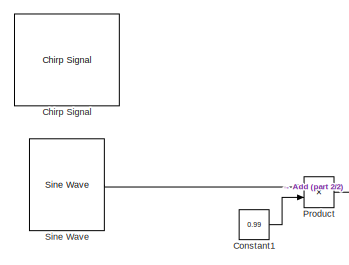
[diagram: root canvas - part 1/2, top left region]
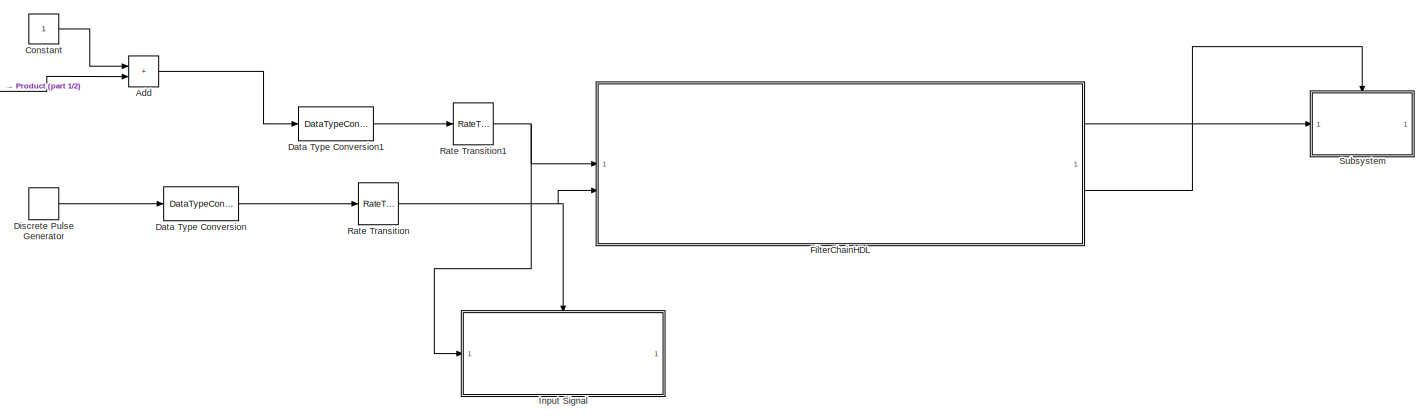
[diagram: root canvas - part 2/2, most of the canvas]
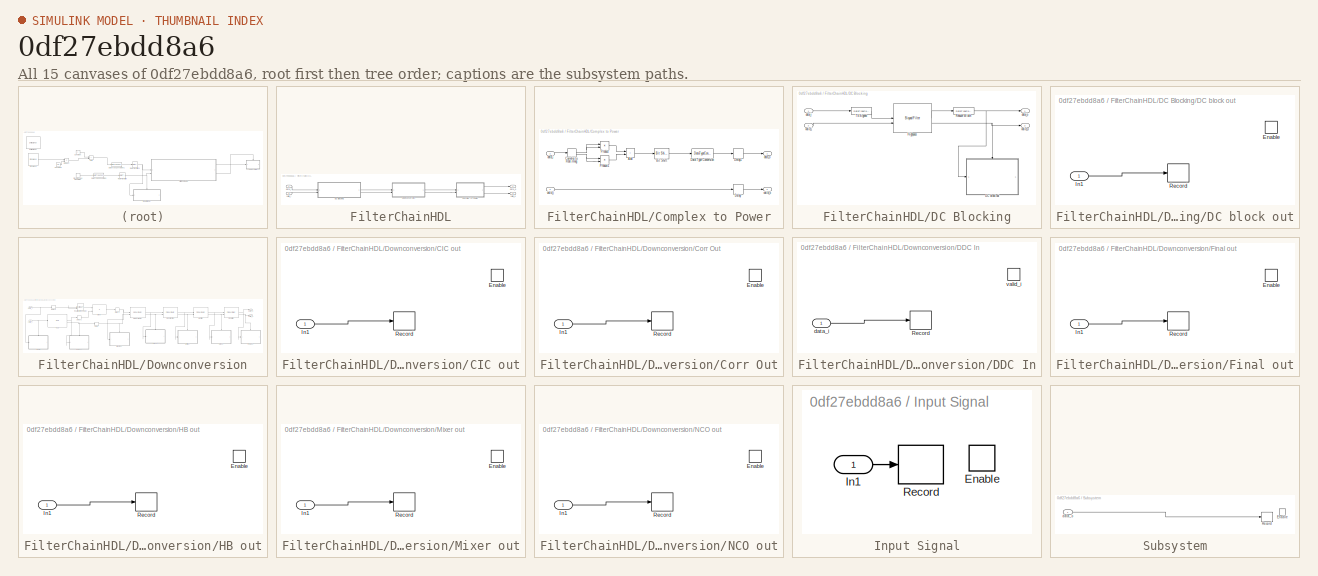
[diagram: thumbnail index - all 15 canvases of the model, root first then tree order]
MODEL slx_0df27ebdd8a6
KIND model
CONFIG AbsTol = auto
CONFIG EnableMultiTasking = off
CONFIG FixedStep = 1/(87.49091e6)
CONFIG MaxStep = auto
CONFIG MinStep = auto
CONFIG RelTol = 1e-3
CONFIG SampleTimeConstraint = Unconstrained
CONFIG SolverName = FixedStepAuto
CONFIG StartTime = 0.0
CONFIG StopTime = 0.02
BLOCK [Sum] Add
  IconShape = rectangular
BLOCK [Reference] Chirp Signal  REF=simulink/Sources/Chirp Signal
  Commented = on
  SourceBlock = simulink/Sources/Chirp Signal
  SourceType = chirp
BLOCK [Constant] Constant
  OutDataTypeStr = double
BLOCK [Constant] Constant1
  OutDataTypeStr = double
  Value = 0.99
BLOCK [DataTypeConversion] Data Type Conversion
  OutDataTypeStr = boolean
  RndMeth = Floor
  SaturateOnIntegerOverflow = off
BLOCK [DataTypeConversion] Data Type Conversion1
  RndMeth = Floor
  SaturateOnIntegerOverflow = off
BLOCK [DiscretePulseGenerator] Discrete Pulse Generator
  Period = 18
  SampleTime = 1/(87.49091e6)
BLOCK [SubSystem] FilterChainHDL
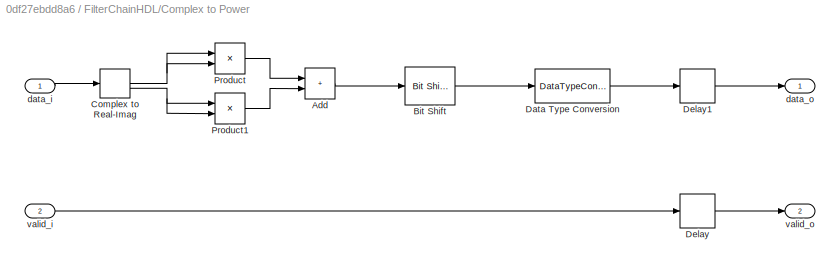
BLOCK [SubSystem] FilterChainHDL/Complex to Power
BLOCK [Sum] FilterChainHDL/Complex to Power/Add
  AccumDataTypeStr = fixdt(1,38,34)
  IconShape = rectangular
  OutDataTypeStr = Inherit: Same as accumulator
BLOCK [Reference] FilterChainHDL/Complex to Power/Bit Shift  REF=hdlsllib/Logic and Bit
Operations/Bit Shift
  SourceBlock = hdlsllib/Logic and Bit\nOperations/Bit Shift
  SourceType = Bit Shift
BLOCK [ComplexToRealImag] FilterChainHDL/Complex to Power/Complex to Real-Imag
BLOCK [DataTypeConversion] FilterChainHDL/Complex to Power/Data Type Conversion
  OutDataTypeStr = fixdt(1,32,28)
  RndMeth = Floor
  SaturateOnIntegerOverflow = off
BLOCK [Delay] FilterChainHDL/Complex to Power/Delay
  DelayLength = 1
  InitialCondition = 0
  InputPortMap = u0
BLOCK [Delay] FilterChainHDL/Complex to Power/Delay1
  DelayLength = 1
  InitialCondition = 0
  InputPortMap = u0
BLOCK [Product] FilterChainHDL/Complex to Power/Product
BLOCK [Product] FilterChainHDL/Complex to Power/Product1
BLOCK [Inport] FilterChainHDL/Complex to Power/data_i
BLOCK [Outport] FilterChainHDL/Complex to Power/data_o
BLOCK [Inport] FilterChainHDL/Complex to Power/valid_i
  Port = 2
BLOCK [Outport] FilterChainHDL/Complex to Power/valid_o
  Port = 2
BLOCK [SubSystem] FilterChainHDL/DC Blocking
BLOCK [SubSystem] FilterChainHDL/DC Blocking/DC block out
  TreatAsAtomicUnit = on
BLOCK [EnablePort] FilterChainHDL/DC Blocking/DC block out/Enable
BLOCK [Inport] FilterChainHDL/DC Blocking/DC block out/In1
BLOCK [Record] FilterChainHDL/DC Blocking/DC block out/Record
  FileSettingsInternal = {"entries":[{"content":{"excelSettings":{"content":{},"type":"Streamout.ExcelSettings"},"parquetSettings":{"content":{},"type":"Streamout.ParquetSettings"}},"type":"Streamout.FileSettingStorage","uuid":""}],"packageUris":["http:\/\/schema.mathworks.com\/mf0\/streamout_blocks\/R2020a"],"version":"1.0"}  <repeated x10 — deduplicated; at blocks: Record>
  FrameSettings = 0
  NumPorts = 1.0
  SignalsInternal = {"entries":[{"content":{"signals":[{"content":{"blockPath":[],"dimensions":[1,1],"domain":"","lineColor":"#ff13a6","lineWidth":2,"plots":[ 1 ],"port":1,"sid":[""],"signalID":1,"signalName":"In1"},"type":"RecordBlkView.Signal","uuid":""}]},"type":"RecordBlkView.InputSignals","uuid":""}],"packageUris":["http:\/\/schema.mathworks.com\/mf0\/streamout_blocks\/R2020a"],"version":"1.0"}
  VisualizationBindings = {"sparklinesplugin":{"info":[{"bindingParametersList":[],"subplotID":1}]}}
BLOCK [Reference] FilterChainHDL/DC Blocking/Highpass  REF=dsphdlfiltering2/Biquad Filter
  SourceBlock = dsphdlfiltering2/Biquad Filter
  SourceType = Biquad Filter
BLOCK [DataTypeConversion] FilterChainHDL/DC Blocking/Reduce Width
  OutDataTypeStr = fixdt(1,16,14)
  RndMeth = Floor
  SaturateOnIntegerOverflow = off
BLOCK [DataTypeConversion] FilterChainHDL/DC Blocking/To Signed
  OutDataTypeStr = fixdt(1,13,11)
  RndMeth = Floor
  SaturateOnIntegerOverflow = off
BLOCK [Inport] FilterChainHDL/DC Blocking/data_i
  OutDataTypeStr = fixdt(0,12,11)
BLOCK [Outport] FilterChainHDL/DC Blocking/data_o
  OutDataTypeStr = fixdt(1,16,14)
BLOCK [Inport] FilterChainHDL/DC Blocking/valid_i
  Port = 2
BLOCK [Outport] FilterChainHDL/DC Blocking/valid_o
  Port = 2
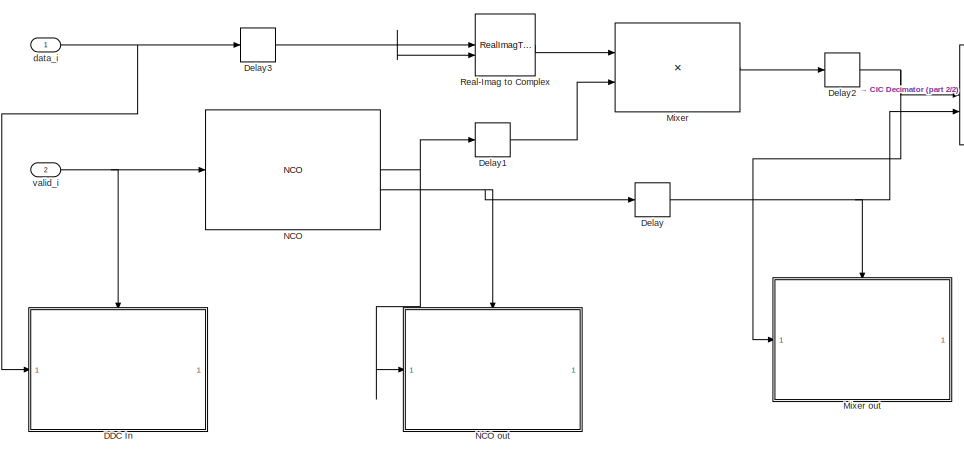
[diagram: FilterChainHDL/Downconversion - part 1/2, left side, full height]
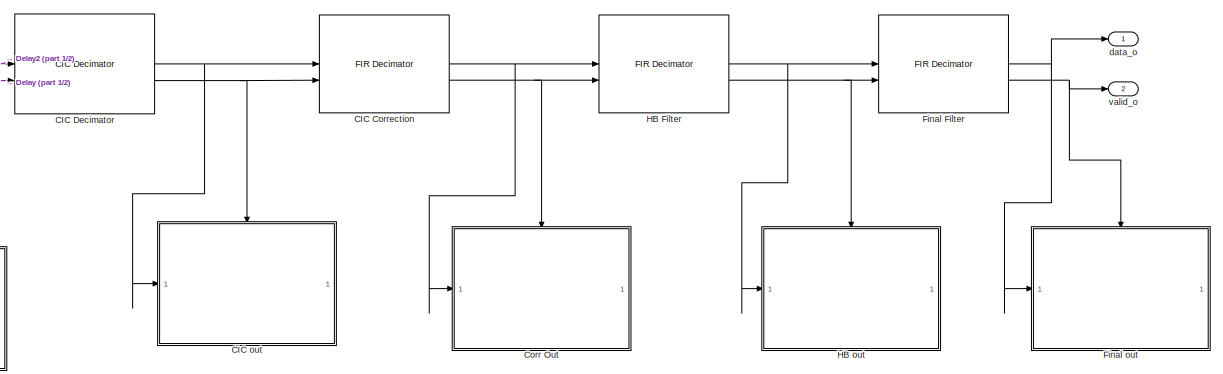
[diagram: FilterChainHDL/Downconversion - part 2/2, right side, full height]
BLOCK [SubSystem] FilterChainHDL/Downconversion
BLOCK [Reference] FilterChainHDL/Downconversion/CIC Correction  REF=dsphdlfiltering2/FIR Decimator
  SourceBlock = dsphdlfiltering2/FIR Decimator
  SourceType = FIR Decimator
BLOCK [Reference] FilterChainHDL/Downconversion/CIC Decimator  REF=dsphdlfiltering2/CIC Decimator
  SourceBlock = dsphdlfiltering2/CIC Decimator
  SourceType = CIC Decimator
BLOCK [SubSystem] FilterChainHDL/Downconversion/CIC out
  TreatAsAtomicUnit = on
BLOCK [EnablePort] FilterChainHDL/Downconversion/CIC out/Enable
BLOCK [Inport] FilterChainHDL/Downconversion/CIC out/In1
BLOCK [Record] FilterChainHDL/Downconversion/CIC out/Record
  FrameSettings = 0
  NumPorts = 1.0
  SignalsInternal = {"entries":[{"content":{"signals":[{"content":{"blockPath":[],"dimensions":[1,1],"domain":"","hasChildren":true,"isComplex":true,"lineColor":"#4dbeee","lineWidth":2,"port":1,"sid":[""],"signalID":1,"signalName":"In1"},"type":"RecordBlkView.Signal","uuid":""},{"content":{"blockPath":[],"dimensions":[1,1],"domain":"","isComplex":true,"lineColor":"#64d413","lineWidth":2,"parentID":1,"plots":[ 1 ],"po...<+470ch>
  VisualizationBindings = {"sparklinesplugin":{"info":[{"bindingParametersList":[],"subplotID":1}]}}
BLOCK [SubSystem] FilterChainHDL/Downconversion/Corr Out
  TreatAsAtomicUnit = on
BLOCK [EnablePort] FilterChainHDL/Downconversion/Corr Out/Enable
BLOCK [Inport] FilterChainHDL/Downconversion/Corr Out/In1
BLOCK [Record] FilterChainHDL/Downconversion/Corr Out/Record
  FrameSettings = 0
  NumPorts = 1.0
  SignalsInternal = {"entries":[{"content":{"signals":[{"content":{"blockPath":[],"dimensions":[1,1],"domain":"","hasChildren":true,"isComplex":true,"lineColor":"#ff6929","lineWidth":2,"port":1,"sid":[""],"signalID":1,"signalName":"In1"},"type":"RecordBlkView.Signal","uuid":""},{"content":{"blockPath":[],"dimensions":[1,1],"domain":"","isComplex":true,"lineColor":"#22b573","lineWidth":2,"parentID":1,"plots":[ 1 ],"po...<+470ch>
  VisualizationBindings = {"sparklinesplugin":{"info":[{"bindingParametersList":[],"subplotID":1}]}}
BLOCK [SubSystem] FilterChainHDL/Downconversion/DDC In
  TreatAsAtomicUnit = on
BLOCK [Record] FilterChainHDL/Downconversion/DDC In/Record
  FrameSettings = 0
  NumPorts = 1.0
  SignalsInternal = {"entries":[{"content":{"signals":[{"content":{"blockPath":[],"dimensions":[1,1],"domain":"","lineColor":"#77ac30","lineWidth":2,"plots":[ 1 ],"port":1,"sid":[""],"signalID":1,"signalName":"data_i"},"type":"RecordBlkView.Signal","uuid":""}]},"type":"RecordBlkView.InputSignals","uuid":""}],"packageUris":["http:\/\/schema.mathworks.com\/mf0\/streamout_blocks\/R2020a"],"version":"1.0"}
  VisualizationBindings = {"sparklinesplugin":{"info":[{"bindingParametersList":[],"subplotID":1}]}}
BLOCK [Inport] FilterChainHDL/Downconversion/DDC In/data_i
BLOCK [EnablePort] FilterChainHDL/Downconversion/DDC In/valid_i
BLOCK [Delay] FilterChainHDL/Downconversion/Delay
  InitialCondition = 0
  InputPortMap = u0
BLOCK [Delay] FilterChainHDL/Downconversion/Delay1
  DelayLength = 1
  InitialCondition = 0
  InputPortMap = u0
BLOCK [Delay] FilterChainHDL/Downconversion/Delay2
  DelayLength = 1
  InitialCondition = 0
  InputPortMap = u0
BLOCK [Delay] FilterChainHDL/Downconversion/Delay3
  DelayLength = 7
  InitialCondition = 0
  InputPortMap = u0
BLOCK [Reference] FilterChainHDL/Downconversion/Final Filter  REF=dsphdlfiltering2/FIR Decimator
  SourceBlock = dsphdlfiltering2/FIR Decimator
  SourceType = FIR Decimator
BLOCK [SubSystem] FilterChainHDL/Downconversion/Final out
  TreatAsAtomicUnit = on
BLOCK [EnablePort] FilterChainHDL/Downconversion/Final out/Enable
BLOCK [Inport] FilterChainHDL/Downconversion/Final out/In1
BLOCK [Record] FilterChainHDL/Downconversion/Final out/Record
  FrameSettings = 0
  NumPorts = 1.0
  SignalsInternal = {"entries":[{"content":{"signals":[{"content":{"blockPath":[],"dimensions":[1,1],"domain":"","hasChildren":true,"isComplex":true,"lineColor":"#fe330a","lineWidth":2,"port":1,"sid":[""],"signalID":1,"signalName":"In1"},"type":"RecordBlkView.Signal","uuid":""},{"content":{"blockPath":[],"dimensions":[1,1],"domain":"","isComplex":true,"lineColor":"#7e2f8e","lineWidth":2,"parentID":1,"plots":[ 1 ],"po...<+470ch>
  VisualizationBindings = {"sparklinesplugin":{"info":[{"bindingParametersList":[],"subplotID":1}]}}
BLOCK [Reference] FilterChainHDL/Downconversion/HB Filter  REF=dsphdlfiltering2/FIR Decimator
  SourceBlock = dsphdlfiltering2/FIR Decimator
  SourceType = FIR Decimator
BLOCK [SubSystem] FilterChainHDL/Downconversion/HB out
  TreatAsAtomicUnit = on
BLOCK [EnablePort] FilterChainHDL/Downconversion/HB out/Enable
BLOCK [Inport] FilterChainHDL/Downconversion/HB out/In1
BLOCK [Record] FilterChainHDL/Downconversion/HB out/Record
  FrameSettings = 0
  NumPorts = 1.0
  SignalsInternal = {"entries":[{"content":{"signals":[{"content":{"blockPath":[],"dimensions":[1,1],"domain":"","hasChildren":true,"isComplex":true,"lineColor":"#d95319","lineWidth":2,"port":1,"sid":[""],"signalID":1,"signalName":"In1"},"type":"RecordBlkView.Signal","uuid":""},{"content":{"blockPath":[],"dimensions":[1,1],"domain":"","isComplex":true,"lineColor":"#a2142f","lineWidth":2,"parentID":1,"plots":[ 1 ],"po...<+470ch>
  VisualizationBindings = {"sparklinesplugin":{"info":[{"bindingParametersList":[],"subplotID":1}]}}
BLOCK [Product] FilterChainHDL/Downconversion/Mixer
  InputSameDT = on
  OutDataTypeStr = fixdt(1,16,14)
BLOCK [SubSystem] FilterChainHDL/Downconversion/Mixer out
  TreatAsAtomicUnit = on
BLOCK [EnablePort] FilterChainHDL/Downconversion/Mixer out/Enable
BLOCK [Inport] FilterChainHDL/Downconversion/Mixer out/In1
BLOCK [Record] FilterChainHDL/Downconversion/Mixer out/Record
  FrameSettings = 0
  NumPorts = 1.0
  SignalsInternal = {"entries":[{"content":{"signals":[{"content":{"blockPath":[],"dimensions":[1,1],"domain":"","hasChildren":true,"isComplex":true,"lineColor":"#77ac30","lineWidth":2,"port":1,"sid":[""],"signalID":1,"signalName":"In1"},"type":"RecordBlkView.Signal","uuid":""},{"content":{"blockPath":[],"dimensions":[1,1],"domain":"","isComplex":true,"lineColor":"#b746ff","lineWidth":2,"parentID":1,"plots":[ 1 ],"po...<+470ch>
  VisualizationBindings = {"sparklinesplugin":{"info":[{"bindingParametersList":[],"subplotID":1}]}}
BLOCK [Reference] FilterChainHDL/Downconversion/NCO  REF=dsphdlsigops2/NCO
  LibrarySourceBlock = dsphdlsrcs2/NCO
  SourceBlock = dsphdlsigops2/NCO
  SourceType = NCO
BLOCK [SubSystem] FilterChainHDL/Downconversion/NCO out
  TreatAsAtomicUnit = on
BLOCK [EnablePort] FilterChainHDL/Downconversion/NCO out/Enable
BLOCK [Inport] FilterChainHDL/Downconversion/NCO out/In1
BLOCK [Record] FilterChainHDL/Downconversion/NCO out/Record
  FrameSettings = 0
  NumPorts = 1.0
  SignalsInternal = {"entries":[{"content":{"signals":[{"content":{"blockPath":[],"dimensions":[1,1],"domain":"","hasChildren":true,"isComplex":true,"lineColor":"#139fff","lineWidth":2,"port":1,"sid":[""],"signalID":1,"signalName":"In1"},"type":"RecordBlkView.Signal","uuid":""},{"content":{"blockPath":[],"dimensions":[1,1],"domain":"","isComplex":true,"lineColor":"#ff13a6","lineWidth":2,"parentID":1,"plots":[ 1 ],"po...<+470ch>
  VisualizationBindings = {"sparklinesplugin":{"info":[{"bindingParametersList":[],"subplotID":1}]}}
BLOCK [RealImagToComplex] FilterChainHDL/Downconversion/Real-Imag to Complex
BLOCK [Inport] FilterChainHDL/Downconversion/data_i
  OutDataTypeStr = fixdt(1,16,14)
BLOCK [Outport] FilterChainHDL/Downconversion/data_o
BLOCK [Inport] FilterChainHDL/Downconversion/valid_i
  OutDataTypeStr = boolean
  Port = 2
BLOCK [Outport] FilterChainHDL/Downconversion/valid_o
  Port = 2
BLOCK [Inport] FilterChainHDL/data_i
  OutDataTypeStr = fixdt(0,12,11)
BLOCK [Outport] FilterChainHDL/data_o
BLOCK [Inport] FilterChainHDL/valid_i
  OutDataTypeStr = boolean
  Port = 2
BLOCK [Outport] FilterChainHDL/valid_o
  OutDataTypeStr = boolean
  Port = 2
BLOCK [SubSystem] Input Signal
BLOCK [EnablePort] Input Signal/Enable
BLOCK [Inport] Input Signal/In1
BLOCK [Record] Input Signal/Record
  FrameSettings = 0
  NumPorts = 1.0
  SignalsInternal = {"entries":[{"content":{"signals":[{"content":{"blockPath":[],"dimensions":[1,1],"domain":"","lineColor":"#7e2f8e","lineWidth":2,"plots":[ 1 ],"port":1,"sid":[""],"signalID":1,"signalName":"In1"},"type":"RecordBlkView.Signal","uuid":""}]},"type":"RecordBlkView.InputSignals","uuid":""}],"packageUris":["http:\/\/schema.mathworks.com\/mf0\/streamout_blocks\/R2020a"],"version":"1.0"}
  VisualizationBindings = {"sparklinesplugin":{"info":[{"bindingParametersList":[],"subplotID":1}]}}
BLOCK [Product] Product
BLOCK [RateTransition] Rate Transition
BLOCK [RateTransition] Rate Transition1
BLOCK [Reference] Sine Wave  REF=dspsrcs4/Sine Wave
  LibrarySourceBlock = dsphdlsupportsrcs/Sine Wave
  SourceBlock = dspsrcs4/Sine Wave
  SourceType = Sine Wave
BLOCK [SubSystem] Subsystem
BLOCK [EnablePort] Subsystem/Enable
BLOCK [Record] Subsystem/Record
  FrameSettings = 0
  NumPorts = 1.0
  SignalsInternal = {"entries":[{"content":{"signals":[{"content":{"blockPath":[],"dimensions":[1],"domain":"","lineColor":"#4dbeee","lineWidth":2,"plots":[ 1 ],"port":1,"sid":[""],"signalID":1,"signalName":"data_o"},"type":"RecordBlkView.Signal","uuid":""}]},"type":"RecordBlkView.InputSignals","uuid":""}],"packageUris":["http:\/\/schema.mathworks.com\/mf0\/streamout_blocks\/R2020a"],"version":"1.0"}
  VisualizationBindings = {"sparklinesplugin":{"info":[{"bindingParametersList":[],"subplotID":1}]}}
BLOCK [Inport] Subsystem/data_o
LINE Add:1 -> Data Type Conversion1:1
LINE Constant1:1 -> Product:2
LINE Constant:1 -> Add:1
LINE Data Type Conversion1:1 -> Rate Transition1:1
LINE Data Type Conversion:1 -> Rate Transition:1
LINE Discrete Pulse Generator:1 -> Data Type Conversion:1
LINE FilterChainHDL/Complex to Power/Add:1 -> FilterChainHDL/Complex to Power/Bit Shift:1
LINE FilterChainHDL/Complex to Power/Bit Shift:1 -> FilterChainHDL/Complex to Power/Data Type Conversion:1
NET FilterChainHDL/Complex to Power/Complex to Real-Imag:1 -> FilterChainHDL/Complex to Power/Product:1, FilterChainHDL/Complex to Power/Product:2
NET FilterChainHDL/Complex to Power/Complex to Real-Imag:2 -> FilterChainHDL/Complex to Power/Product1:1, FilterChainHDL/Complex to Power/Product1:2
LINE FilterChainHDL/Complex to Power/Data Type Conversion:1 -> FilterChainHDL/Complex to Power/Delay1:1
LINE FilterChainHDL/Complex to Power/Delay1:1 -> FilterChainHDL/Complex to Power/data_o:1
LINE FilterChainHDL/Complex to Power/Delay:1 -> FilterChainHDL/Complex to Power/valid_o:1
LINE FilterChainHDL/Complex to Power/Product1:1 -> FilterChainHDL/Complex to Power/Add:2
LINE FilterChainHDL/Complex to Power/Product:1 -> FilterChainHDL/Complex to Power/Add:1
LINE FilterChainHDL/Complex to Power/data_i:1 -> FilterChainHDL/Complex to Power/Complex to Real-Imag:1
LINE FilterChainHDL/Complex to Power/valid_i:1 -> FilterChainHDL/Complex to Power/Delay:1
LINE FilterChainHDL/Complex to Power:1 -> FilterChainHDL/data_o:1
LINE FilterChainHDL/Complex to Power:2 -> FilterChainHDL/valid_o:1
LINE FilterChainHDL/DC Blocking/DC block out/In1:1 -> FilterChainHDL/DC Blocking/DC block out/Record:1
LINE FilterChainHDL/DC Blocking/Highpass:1 -> FilterChainHDL/DC Blocking/Reduce Width:1
NET FilterChainHDL/DC Blocking/Highpass:2 -> FilterChainHDL/DC Blocking/DC block out:enable, FilterChainHDL/DC Blocking/valid_o:1
NET FilterChainHDL/DC Blocking/Reduce Width:1 -> FilterChainHDL/DC Blocking/DC block out:1, FilterChainHDL/DC Blocking/data_o:1
LINE FilterChainHDL/DC Blocking/To Signed:1 -> FilterChainHDL/DC Blocking/Highpass:1
LINE FilterChainHDL/DC Blocking/data_i:1 -> FilterChainHDL/DC Blocking/To Signed:1
LINE FilterChainHDL/DC Blocking/valid_i:1 -> FilterChainHDL/DC Blocking/Highpass:2
LINE FilterChainHDL/DC Blocking:1 -> FilterChainHDL/Downconversion:1
LINE FilterChainHDL/DC Blocking:2 -> FilterChainHDL/Downconversion:2
NET FilterChainHDL/Downconversion/CIC Correction:1 -> FilterChainHDL/Downconversion/Corr Out:1, FilterChainHDL/Downconversion/HB Filter:1
NET FilterChainHDL/Downconversion/CIC Correction:2 -> FilterChainHDL/Downconversion/Corr Out:enable, FilterChainHDL/Downconversion/HB Filter:2
NET FilterChainHDL/Downconversion/CIC Decimator:1 -> FilterChainHDL/Downconversion/CIC Correction:1, FilterChainHDL/Downconversion/CIC out:1
NET FilterChainHDL/Downconversion/CIC Decimator:2 -> FilterChainHDL/Downconversion/CIC Correction:2, FilterChainHDL/Downconversion/CIC out:enable
LINE FilterChainHDL/Downconversion/CIC out/In1:1 -> FilterChainHDL/Downconversion/CIC out/Record:1
LINE FilterChainHDL/Downconversion/Corr Out/In1:1 -> FilterChainHDL/Downconversion/Corr Out/Record:1
LINE FilterChainHDL/Downconversion/DDC In/data_i:1 -> FilterChainHDL/Downconversion/DDC In/Record:1
LINE FilterChainHDL/Downconversion/Delay1:1 -> FilterChainHDL/Downconversion/Mixer:2
NET FilterChainHDL/Downconversion/Delay2:1 -> FilterChainHDL/Downconversion/CIC Decimator:1, FilterChainHDL/Downconversion/Mixer out:1
NET FilterChainHDL/Downconversion/Delay3:1 -> FilterChainHDL/Downconversion/Real-Imag to Complex:1, FilterChainHDL/Downconversion/Real-Imag to Complex:2
NET FilterChainHDL/Downconversion/Delay:1 -> FilterChainHDL/Downconversion/CIC Decimator:2, FilterChainHDL/Downconversion/Mixer out:enable
NET FilterChainHDL/Downconversion/Final Filter:1 -> FilterChainHDL/Downconversion/Final out:1, FilterChainHDL/Downconversion/data_o:1
NET FilterChainHDL/Downconversion/Final Filter:2 -> FilterChainHDL/Downconversion/Final out:enable, FilterChainHDL/Downconversion/valid_o:1
LINE FilterChainHDL/Downconversion/Final out/In1:1 -> FilterChainHDL/Downconversion/Final out/Record:1
NET FilterChainHDL/Downconversion/HB Filter:1 -> FilterChainHDL/Downconversion/Final Filter:1, FilterChainHDL/Downconversion/HB out:1
NET FilterChainHDL/Downconversion/HB Filter:2 -> FilterChainHDL/Downconversion/Final Filter:2, FilterChainHDL/Downconversion/HB out:enable
LINE FilterChainHDL/Downconversion/HB out/In1:1 -> FilterChainHDL/Downconversion/HB out/Record:1
LINE FilterChainHDL/Downconversion/Mixer out/In1:1 -> FilterChainHDL/Downconversion/Mixer out/Record:1
LINE FilterChainHDL/Downconversion/Mixer:1 -> FilterChainHDL/Downconversion/Delay2:1
LINE FilterChainHDL/Downconversion/NCO out/In1:1 -> FilterChainHDL/Downconversion/NCO out/Record:1
NET FilterChainHDL/Downconversion/NCO:1 -> FilterChainHDL/Downconversion/Delay1:1, FilterChainHDL/Downconversion/NCO out:1
NET FilterChainHDL/Downconversion/NCO:2 -> FilterChainHDL/Downconversion/Delay:1, FilterChainHDL/Downconversion/NCO out:enable
LINE FilterChainHDL/Downconversion/Real-Imag to Complex:1 -> FilterChainHDL/Downconversion/Mixer:1
NET FilterChainHDL/Downconversion/data_i:1 -> FilterChainHDL/Downconversion/DDC In:1, FilterChainHDL/Downconversion/Delay3:1
NET FilterChainHDL/Downconversion/valid_i:1 -> FilterChainHDL/Downconversion/DDC In:enable, FilterChainHDL/Downconversion/NCO:1
LINE FilterChainHDL/Downconversion:1 -> FilterChainHDL/Complex to Power:1
LINE FilterChainHDL/Downconversion:2 -> FilterChainHDL/Complex to Power:2
LINE FilterChainHDL/data_i:1 -> FilterChainHDL/DC Blocking:1
LINE FilterChainHDL/valid_i:1 -> FilterChainHDL/DC Blocking:2
LINE FilterChainHDL:1 -> Subsystem:1
LINE FilterChainHDL:2 -> Subsystem:enable
LINE Input Signal/In1:1 -> Input Signal/Record:1
LINE Product:1 -> Add:2
NET Rate Transition1:1 -> FilterChainHDL:1, Input Signal:1
NET Rate Transition:1 -> FilterChainHDL:2, Input Signal:enable
LINE Sine Wave:1 -> Product:1
LINE Subsystem/data_o:1 -> Subsystem/Record:1
note: NET lines group one-source signal fan-out (src -> all destinations, sorted); 1:1 wires keep LINE
